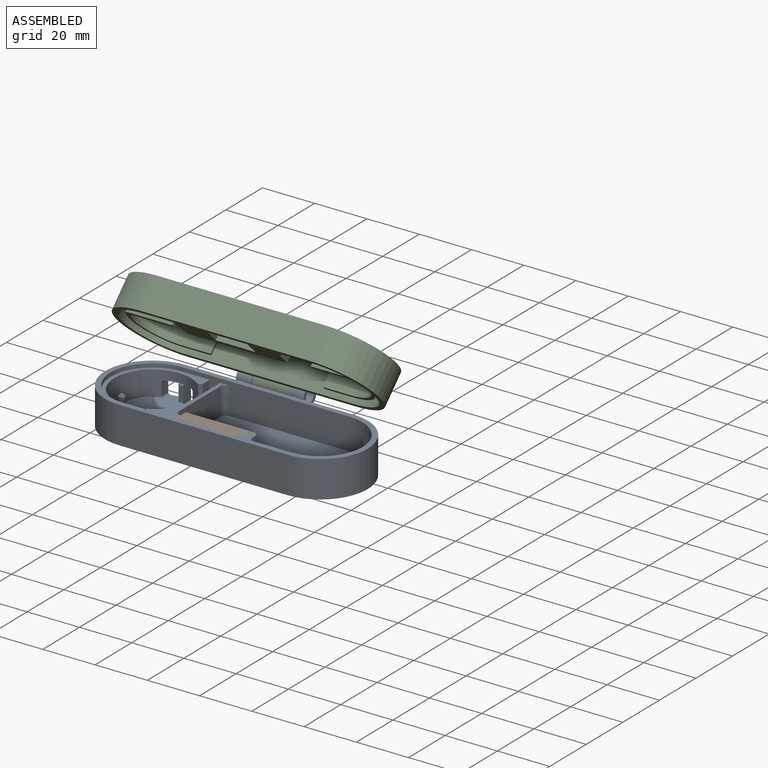
[diagram: assembled view]
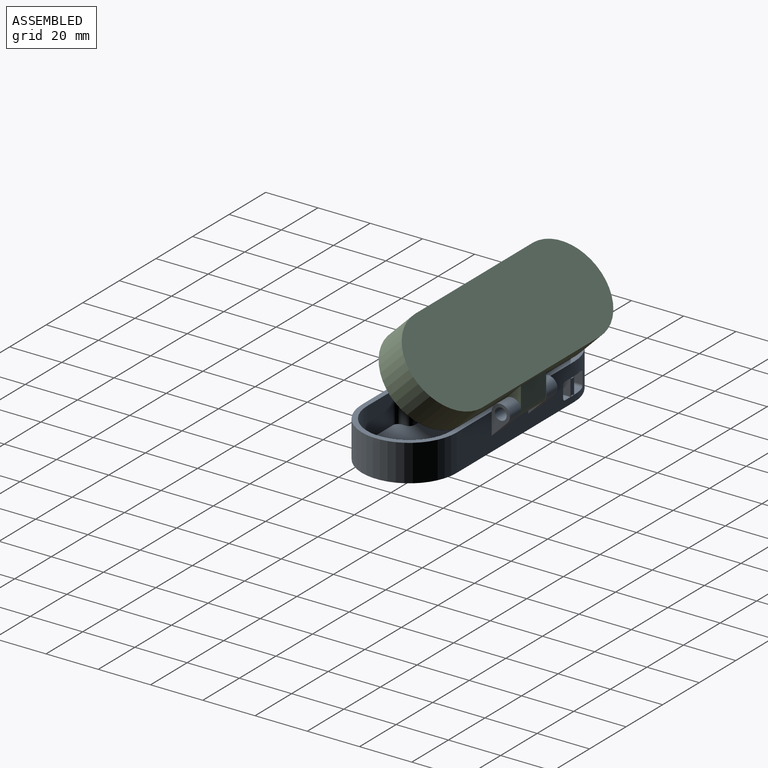
[diagram: assembled view, second angle]
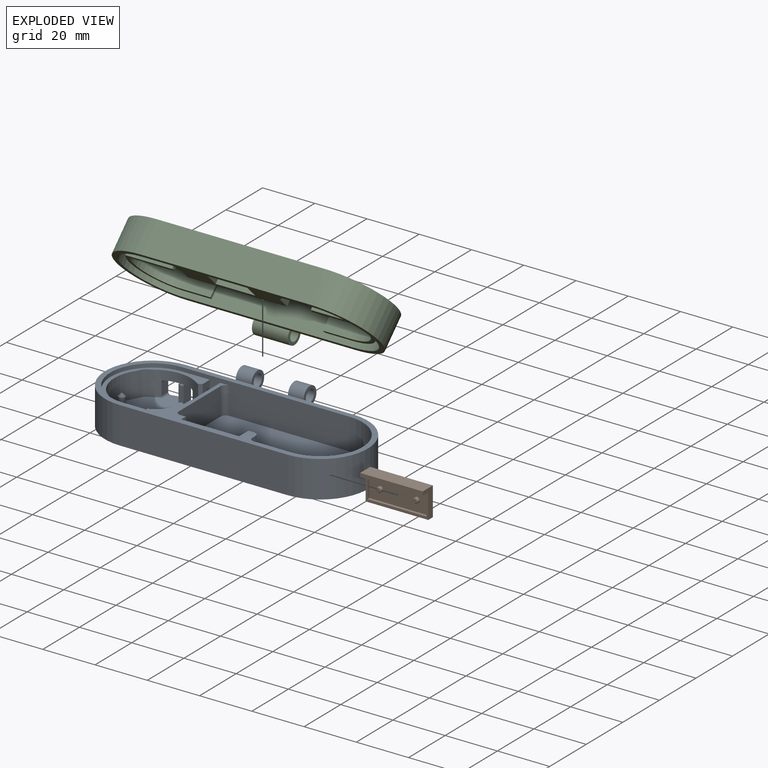
[diagram: exploded view]
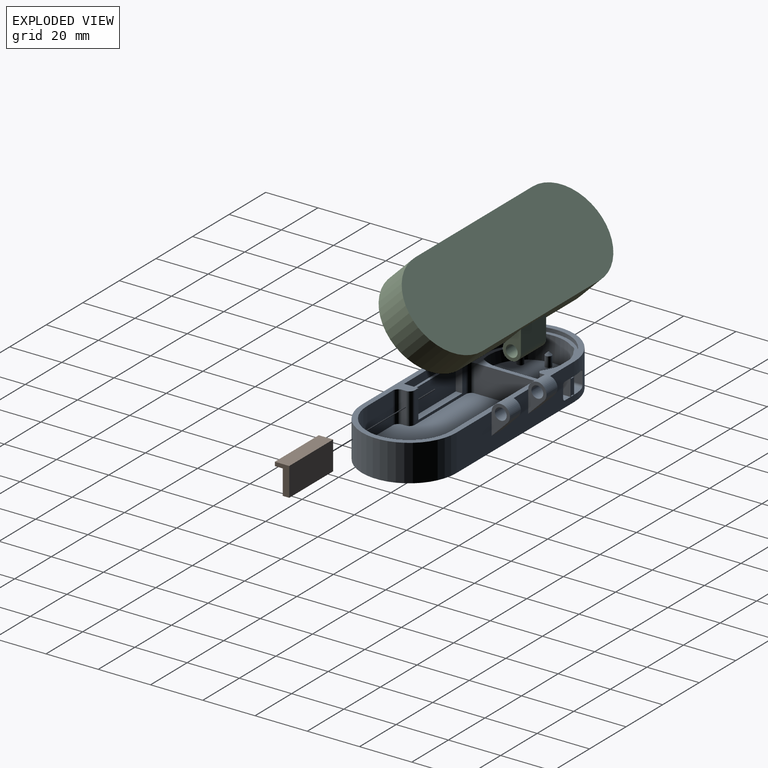
[diagram: exploded view, second angle]
ASSEMBLY  parts=3 mates=4
PART A: 84 faces, bbox 100.5x43.2x17.5 mm
  f0: plane 3.61x1.5mm, normal (0,0,-1), area 5.3mm2, adj f9,f28,f76,f78
  f1: plane 4.38x3mm, normal (0,0,-1), area 11.9mm2, adj f9,f28,f37,f79
  f2: plane 10x5.31mm, normal (0,0,1), area 49.9mm2, adj f9,f10,f35,f41,f42,f75,f79,f80
  f3: plane 30.24x26.74mm, normal (0,0,1), area 89.5mm2, adj f6,f20,f25,f28,f44,f47,f52,f54
  f4: plane 3.5x1.01mm, normal (-0.89,-0.46,0), area 4mm2, adj f7,f27,f52,f60
  f5: plane 37.2x30.24mm, normal (0,0,1), area 121.8mm2, adj f6,f7,f8,f17,f18,f19,f20,f43
  f6: cylinder r=14.62mm len=23.59mm, axis (0,0,1), area 323.4mm2, adj f3,f5,f27,f46,f47,f48,f53,f55
  f7: cylinder r=14.62mm len=16.89mm, axis (0,0,1), area 117.1mm2, adj f4,f5,f27,f58,f60,f61
  f8: plane 28x12mm, normal (0,1,0), area 69mm2, adj f5,f14,f16,f17,f24,f43,f49,f51
  f9: plane 64.24x14mm, normal (0,1,0), area 771.5mm2, adj f0,f1,f2,f10,f12,f13,f14,f36
  f10: cylinder r=18.12mm len=36.24mm, axis (0,0,-1), area 757.7mm2, adj f2,f9,f11,f13,f14,f38,f39,f40
  f11: plane 64.24x14mm, normal (0,-1,0), area 899.4mm2, adj f10,f12,f13,f14
  f12: cylinder r=18.12mm len=36.24mm, axis (0,0,-1), area 797mm2, adj f9,f11,f13,f14
  f13: plane 100.48x36.24mm, normal (0,0,-1), area 3359.6mm2, adj f9,f10,f11,f12
  f14: plane 100.48x36.24mm, normal (0,0,1), area 494.1mm2, adj f8,f9,f10,f11,f12,f15,f16,f20
  f15: plane 12x1.5mm, normal (1,0,0), area 18mm2, adj f14,f16,f23,f24
  f16: cylinder r=2mm len=12mm, axis (0,0,-1), area 37.7mm2, adj f8,f14,f15,f24
  f17: cylinder r=2mm len=10.5mm, axis (0,0,-1), area 33mm2, adj f5,f8,f18,f24
  f18: plane 22.74x10.5mm, normal (1,0,0), area 238.8mm2, adj f5,f17,f19,f24
  f19: cylinder r=2mm len=10.5mm, axis (0,0,-1), area 33mm2, adj f5,f18,f20,f24
  f20: plane 64.24x12mm, normal (0,-1,0), area 604.6mm2, adj f3,f5,f14,f19,f21,f24,f25,f59
  f21: cylinder r=16.12mm len=32.24mm, axis (0,0,-1), area 607.7mm2, adj f14,f20,f22,f24
  f22: plane 14.12x12mm, normal (0,1,0), area 169.4mm2, adj f14,f21,f23,f24
  f23: cylinder r=2mm len=12mm, axis (0,0,-1), area 37.7mm2, adj f14,f15,f22,f24
  f24: plane 64.24x32.24mm, normal (0,0,1), area 1781.9mm2, adj f8,f15,f16,f17,f18,f19,f20,f21
  f25: cylinder r=16.12mm len=32.24mm, axis (0,0,1), area 116.5mm2, adj f3,f14,f20,f26,f44,f46
  f26: plane 44.12x6.5mm, normal (0,1,0), area 286.8mm2, adj f14,f25,f43,f46
  f27: plane 29.24x28.01mm, normal (0,0,1), area 648.7mm2, adj f4,f6,f7,f28,f29,f31,f35,f41
  f28: cylinder r=14.62mm len=16.89mm, axis (0,0,1), area 97.4mm2, adj f0,f1,f3,f27,f36,f37,f38,f39
  f29: cylinder r=1.25mm len=4mm, axis (0,0,-1), area 31.4mm2, adj f27,f34
  f30: plane 0.5x0.5mm, normal (0,0,1), area 0.2mm2, adj f34
  f31: cylinder r=1.25mm len=4mm, axis (0,0,-1), area 31.4mm2, adj f27,f33
  f32: plane 0.5x0.5mm, normal (0,0,1), area 0.2mm2, adj f33
  f33: cone r=0.25mm half-angle=45deg, axis (0,0,-1), area 6.7mm2, adj f31,f32
  f34: cone r=0.25mm half-angle=45deg, axis (0,0,-1), area 6.7mm2, adj f29,f30
  f35: plane 11.73x0.5mm, normal (0,1,0), area 5.6mm2, adj f2,f27,f41,f42
  f36: plane 4.79x4.5mm, normal (-1,0,0), area 21.5mm2, adj f9,f28,f37,f42
  f37: cylinder r=1mm len=4.79mm, axis (0,-1,0), area 7.3mm2, adj f1,f9,f28,f36
  f38: plane 5x4.38mm, normal (0,0,-1), area 17.8mm2, adj f10,f28,f39,f75
  f39: cylinder r=1mm len=4.08mm, axis (0,-1,0), area 5.9mm2, adj f10,f28,f38,f40
  f40: plane 4.5x3.77mm, normal (1,0,0), area 16.9mm2, adj f10,f28,f39,f41
  f41: cylinder r=1mm len=4.6mm, axis (0,-1,0), area 6.6mm2, adj f2,f10,f27,f28,f35,f40
  f42: cylinder r=1mm len=5.31mm, axis (0,-1,0), area 8.1mm2, adj f2,f9,f27,f28,f35,f36
  f43: plane 11x5.5mm, normal (-1,0,0), area 42mm2, adj f5,f8,f14,f26,f45,f46,f49,f50
  f44: plane 5x0.55mm, normal (0,-1,0), area 2.7mm2, adj f3,f25,f46,f47
  f45: plane 36.89x5mm, normal (0,-1,0), area 184.4mm2, adj f5,f43,f46,f48
  f46: plane 51.9x3.24mm, normal (0,0,1), area 100mm2, adj f6,f25,f26,f43,f44,f45,f47,f48
  f47: plane 5x1.24mm, normal (0.97,-0.24,0), area 6.4mm2, adj f3,f6,f44,f46
  f48: plane 5x1.24mm, normal (-0.97,-0.24,0), area 6.4mm2, adj f5,f6,f45,f46
  f49: plane 24x2.5mm, normal (0,0,1), area 60mm2, adj f8,f43,f50,f51
  f50: plane 24x9.5mm, normal (0,1,0), area 228mm2, adj f5,f43,f49,f51
  f51: plane 9.5x2.5mm, normal (1,0,0), area 23.8mm2, adj f5,f8,f49,f50
  f52: cylinder r=3.25mm len=9.5mm, axis (0,0,1), area 10.2mm2, adj f3,f4,f27,f57,f60,f62
  f53: cylinder r=3.25mm len=9.5mm, axis (0,0,1), area 31.9mm2, adj f5,f6,f27,f58
  f54: cylinder r=3.25mm len=9.5mm, axis (0,0,1), area 27.2mm2, adj f3,f27,f55,f56
  f55: plane 9.5x1.01mm, normal (0.89,-0.46,0), area 10.8mm2, adj f3,f6,f27,f54
  f56: plane 9.5x1.01mm, normal (0.46,-0.89,0), area 10.8mm2, adj f3,f27,f28,f54
  f57: plane 9.5x1.01mm, normal (-0.46,-0.89,0), area 10.8mm2, adj f3,f27,f28,f52
  f58: plane 9.5x1.01mm, normal (-0.89,0.46,0), area 10.8mm2, adj f5,f7,f27,f53
  f59: plane 6x3.93mm, normal (1,0,0), area 23.6mm2, adj f3,f20,f60,f62
  f60: plane 16.12x5.14mm, normal (0,0,1), area 37.1mm2, adj f4,f7,f20,f52,f59,f61,f62
  f61: plane 16.12x6mm, normal (-1,0,0), area 96.7mm2, adj f5,f7,f20,f60
  f62: plane 6x1.14mm, normal (0.57,-0.82,0), area 8.3mm2, adj f3,f52,f59,f60
  f63: plane 11.95x7mm, normal (1,0,0), area 37.4mm2, adj f9,f64,f66,f67
  f64: cylinder r=3.5mm len=7mm, axis (-1,0,0), area 82.5mm2, adj f14,f63,f65,f67
  f65: plane 11.95x7mm, normal (-1,0,0), area 37.4mm2, adj f9,f64,f66,f67
  f66: cylinder r=2.27mm len=6mm, axis (-1,0,0), area 85.8mm2, adj f63,f65
  f67: plane 6x5.98mm, normal (0,0.71,-0.71), area 50.7mm2, adj f9,f63,f64,f65
  f68: plane 11.95x7mm, normal (1,0,0), area 37.4mm2, adj f9,f69,f71,f72
  f69: plane 6x5.98mm, normal (0,0.71,-0.71), area 50.7mm2, adj f9,f68,f70,f72
  f70: plane 11.95x7mm, normal (-1,0,0), area 37.4mm2, adj f9,f69,f71,f72
  f71: cylinder r=2.27mm len=6mm, axis (-1,0,0), area 85.8mm2, adj f68,f70
  f72: cylinder r=3.5mm len=7mm, axis (-1,0,0), area 82.5mm2, adj f14,f68,f69,f70
  f73: plane 0.5x0.25mm, normal (0,0,1), area 0.1mm2, adj f28,f75,f76,f83
  f74: plane 0.4x0.25mm, normal (0,0,1), area 0.1mm2, adj f28,f78,f79,f83
  f75: plane 6.5x4mm, normal (-1,0,0), area 26mm2, adj f2,f9,f38,f73,f83
  f76: plane 4x0.3mm, normal (1,0,0), area 1.2mm2, adj f0,f9,f73,f77,f83
  f77: plane 4x1.5mm, normal (0,0,1), area 6mm2, adj f9,f76,f78,f83
  f78: plane 4x0.3mm, normal (-1,0,0), area 1.2mm2, adj f0,f9,f74,f77,f83
  f79: plane 6.5x4mm, normal (1,0,0), area 26mm2, adj f1,f2,f9,f74,f83
  f80: plane 4x0.3mm, normal (-1,0,0), area 1.2mm2, adj f2,f9,f81,f83
  f81: plane 4x1.5mm, normal (0,0,-1), area 6mm2, adj f9,f80,f82,f83
  f82: plane 4x0.3mm, normal (1,0,0), area 1.2mm2, adj f2,f9,f81,f83
  f83: plane 6.5x2mm, normal (0,-1,0), area 12.1mm2, adj f2,f73,f74,f75,f76,f77,f78,f79
PART B: 18 faces, bbox 24x5.5x11 mm
  f0: plane 24x4mm, normal (0,0,-1), area 94.5mm2, adj f1,f2,f4,f7,f8,f9,f10
  f1: plane 22.5x8.5mm, normal (0,-1,0), area 185mm2, adj f0,f9,f10,f11,f13,f15
  f2: plane 11x5.5mm, normal (-1,0,0), area 32mm2, adj f0,f3,f5,f6,f7,f8
  f3: plane 24x5.5mm, normal (0,0,1), area 132mm2, adj f2,f4,f6,f7
  f4: plane 11x5.5mm, normal (1,0,0), area 32mm2, adj f0,f3,f5,f6,f7,f8
  f5: plane 24x2.5mm, normal (0,0,-1), area 60mm2, adj f2,f4,f6,f8
  f6: plane 24x11mm, normal (0,1,0), area 264mm2, adj f2,f3,f4,f5
  f7: plane 24x1.5mm, normal (0,-1,0), area 36mm2, adj f0,f2,f3,f4
  f8: plane 24x9.5mm, normal (0,-1,0), area 36.7mm2, adj f0,f2,f4,f5,f9,f10,f11
  f9: plane 8.5x1mm, normal (1,0,0), area 8.5mm2, adj f0,f1,f8,f11
  f10: plane 8.5x1mm, normal (-1,0,0), area 8.5mm2, adj f0,f1,f8,f11
  f11: plane 22.5x1mm, normal (0,0,1), area 22.5mm2, adj f1,f8,f9,f10
  f12: plane 1.4x1.4mm, normal (0,-1,0), area 1.5mm2, adj f17
  f13: cylinder r=1mm len=2mm, axis (0,1,0), area 4.4mm2, adj f1,f17
  f14: plane 1.4x1.4mm, normal (0,-1,0), area 1.5mm2, adj f16
  f15: cylinder r=1mm len=2mm, axis (0,1,0), area 4.4mm2, adj f1,f16
  f16: cone r=1mm half-angle=45deg, axis (0,1,0), area 2.3mm2, adj f14,f15
  f17: cone r=1mm half-angle=45deg, axis (0,1,0), area 2.3mm2, adj f12,f13
PART C: 47 faces, bbox 100.5x43.2x16 mm
  f0: plane 96.48x32.24mm, normal (0,0,-1), area 2424.7mm2, adj f7,f8,f9,f10,f11,f12,f13,f14
  f1: plane 64.24x12.5mm, normal (0,1,0), area 686.4mm2, adj f2,f4,f5,f6,f20,f21,f24
  f2: cylinder r=18.12mm len=36.24mm, axis (0,0,1), area 711.6mm2, adj f1,f3,f5,f6
  f3: plane 64.24x12.5mm, normal (0,-1,0), area 803mm2, adj f2,f4,f5,f6
  f4: cylinder r=18.12mm len=36.24mm, axis (0,0,1), area 711.6mm2, adj f1,f3,f5,f6
  f5: plane 100.48x36.24mm, normal (0,0,1), area 3359.6mm2, adj f1,f2,f3,f4
  f6: plane 100.48x36.24mm, normal (0,0,-1), area 674.5mm2, adj f1,f2,f3,f4,f7,f8,f9,f10
  f7: plane 11.12x10.5mm, normal (0,1,0), area 116.8mm2, adj f0,f6,f14,f44
  f8: plane 10.5x5.7mm, normal (1,0,0), area 59.9mm2, adj f0,f6,f9,f44
  f9: plane 38x10.5mm, normal (0,1,0), area 399mm2, adj f0,f6,f8,f10
  f10: plane 10.5x5.7mm, normal (-1,0,0), area 59.9mm2, adj f0,f6,f9,f43
  f11: plane 11.12x10.5mm, normal (0,1,0), area 116.8mm2, adj f0,f6,f12,f43
  f12: cylinder r=16.12mm len=32.24mm, axis (0,0,1), area 531.7mm2, adj f0,f6,f11,f13
  f13: plane 64.24x10.5mm, normal (0,-1,0), area 674.5mm2, adj f0,f6,f12,f14
  f14: cylinder r=16.12mm len=32.24mm, axis (0,0,1), area 531.7mm2, adj f0,f6,f7,f13
  f15: plane 15.2x6.2mm, normal (0,0,-1), area 94.2mm2, adj f16,f17,f18,f19
  f16: plane 6.2x3.2mm, normal (-1,0,0), area 19.8mm2, adj f6,f15,f17,f19
  f17: plane 15.2x3.2mm, normal (0,1,0), area 48.6mm2, adj f6,f15,f16,f18
  f18: plane 6.2x3.2mm, normal (1,0,0), area 19.8mm2, adj f6,f15,f17,f19
  f19: plane 15.2x3.2mm, normal (0,-1,0), area 48.6mm2, adj f6,f15,f16,f18
  f20: plane 11.95x7mm, normal (1,0,0), area 37.4mm2, adj f1,f22,f23,f24
  f21: plane 11.95x7mm, normal (-1,0,0), area 37.4mm2, adj f1,f22,f23,f24
  f22: cylinder r=2.27mm len=13.8mm, axis (-1,0,0), area 197.3mm2, adj f20,f21
  f23: cylinder r=3.5mm len=13.8mm, axis (-1,0,0), area 189.7mm2, adj f6,f20,f21,f24
  f24: plane 13.8x5.98mm, normal (0,0.71,0.71), area 116.6mm2, adj f1,f20,f21,f23
  f25: plane 24.74x20.94mm, normal (0,0,-1), area 83.1mm2, adj f26,f27,f28,f29,f30,f31,f32,f33
  f26: plane 17.06x9mm, normal (0,1,0), area 153.6mm2, adj f0,f25,f27,f32
  f27: cylinder r=12.62mm len=17.94mm, axis (0,0,1), area 227.8mm2, adj f0,f25,f26,f28
  f28: plane 10.62x9mm, normal (0,-1,0), area 95.6mm2, adj f0,f25,f27,f29
  f29: plane 9x1mm, normal (-1,0,0), area 9mm2, adj f0,f25,f28,f45
  f30: plane 10.12x9mm, normal (0,1,0), area 91.1mm2, adj f0,f25,f31,f45
  f31: cylinder r=14.12mm len=20.94mm, axis (0,0,1), area 263.7mm2, adj f0,f25,f30,f33
  f32: plane 9x1.5mm, normal (-1,0,0), area 13.5mm2, adj f0,f25,f26,f33
  f33: plane 17.98x9mm, normal (0,-1,0), area 161.9mm2, adj f0,f25,f31,f32
  f34: plane 24.74x20.94mm, normal (0,0,-1), area 83.1mm2, adj f35,f36,f37,f38,f39,f40,f41,f42
  f35: plane 17.06x9mm, normal (0,1,0), area 153.6mm2, adj f0,f34,f36,f42
  f36: plane 9x1.5mm, normal (1,0,0), area 13.5mm2, adj f0,f34,f35,f37
  f37: plane 17.98x9mm, normal (0,-1,0), area 161.9mm2, adj f0,f34,f36,f38
  f38: cylinder r=14.12mm len=20.94mm, axis (0,0,1), area 263.7mm2, adj f0,f34,f37,f39
  f39: plane 10.12x9mm, normal (0,1,0), area 91.1mm2, adj f0,f34,f38,f46
  f40: plane 9x1mm, normal (1,0,0), area 9mm2, adj f0,f34,f41,f46
  f41: plane 10.62x9mm, normal (0,-1,0), area 95.6mm2, adj f0,f34,f40,f42
  f42: cylinder r=12.62mm len=17.94mm, axis (0,0,1), area 227.8mm2, adj f0,f34,f35,f41
  f43: plane 10.5x2mm, normal (-0.71,0.71,0), area 29.7mm2, adj f0,f6,f10,f11
  f44: plane 10.5x2mm, normal (0.71,0.71,0), area 29.7mm2, adj f0,f6,f7,f8
  f45: plane 9x0.5mm, normal (-0.71,0.71,0), area 6.4mm2, adj f0,f25,f29,f30
  f46: plane 9x0.5mm, normal (0.71,0.71,0), area 6.4mm2, adj f0,f34,f39,f40
PLACE A t=(-44.83,12.62,-54.14)mm
PLACE B t=(-44.83,12.62,-54.14)mm
PLACE C rot(axis=(-1,0,0),45deg) t=(-44.73,9.05,-34.76)mm
MATE revolute C.f22 <-> A.f64  axis (1,0,0) through (-5.71,34.24,-40.14)mm
MATE parallel B.f4 <-> A.f43  axis (1,0,0) through (-0.71,0.36,-44.98)mm
MATE parallel B.f3 <-> A.f14  axis (0,0,1) through (-12.71,-0.75,-40.14)mm
MATE parallel B.f6 <-> A.f8  axis (0,1,0) through (-12.71,2,-45.64)mm
